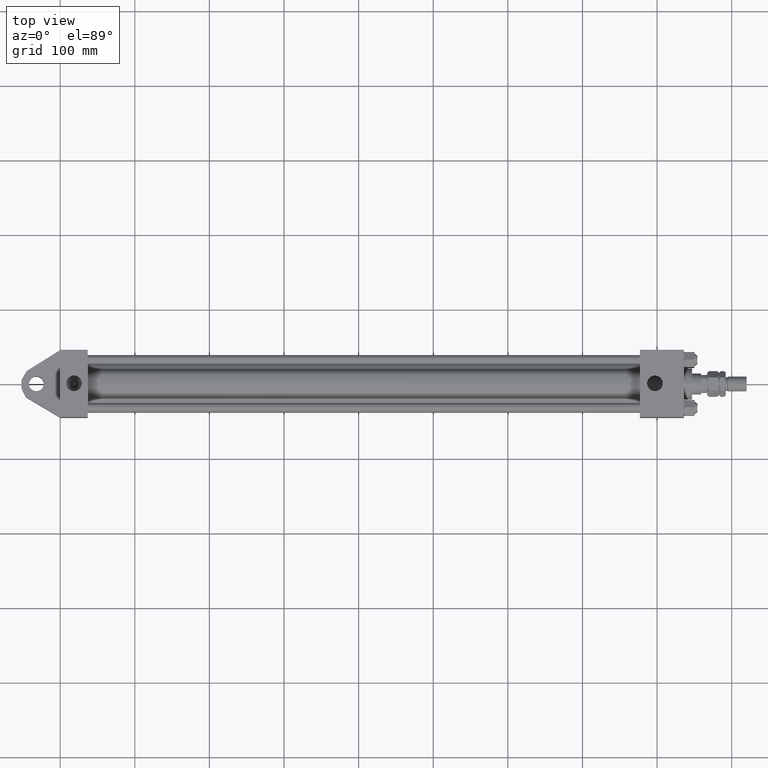
[diagram: clean part render]
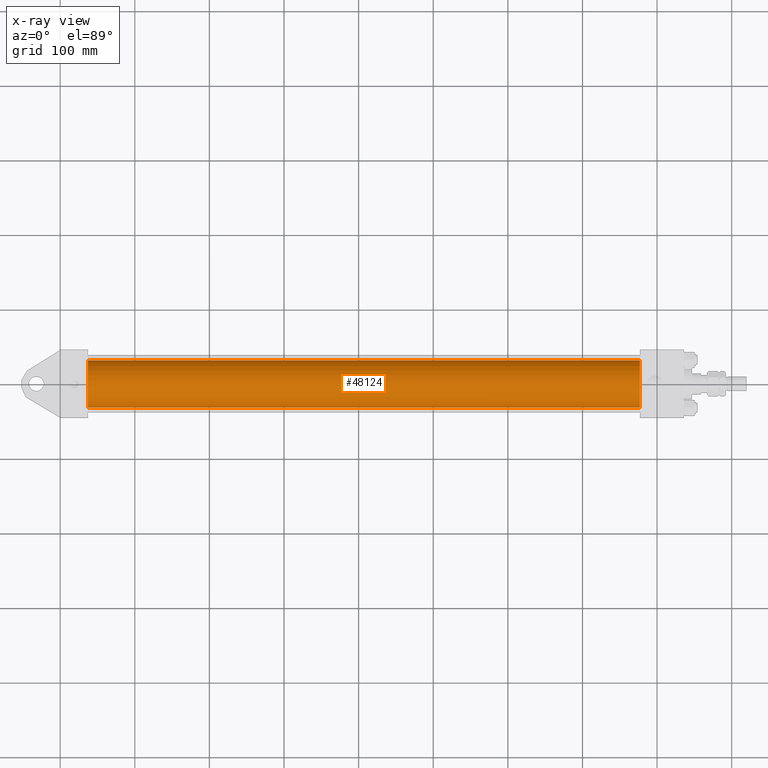
[diagram: x-ray — body ghosted, one internal face saturated and labeled with its STEP entity id]
A machine part, top view, then the same camera in x-ray: the body is ghosted and one INTERNAL B-rep face — a face not visible from any outside direction — is saturated and labeled: STEP entity #48124.
In plain terms, the highlighted cylindrical surface (edge-blend (fillet) strip) has radius 31.5 mm, axis along (-1, -0, 0).
Its self-contained STEP definition (entity closure, byte-faithful):
#432 = ORIENTED_EDGE ( 'NONE', *, *, #50229, .T. ) ;
#1078 = CARTESIAN_POINT ( 'NONE',  ( 777.0000000000000000, 3.881904653605483521E-16, -31.50000000000000000 ) ) ;
#1597 = DIRECTION ( 'NONE',  ( 1.000000000000000000, 0.000000000000000000, 0.000000000000000000 ) ) ;
#2265 = AXIS2_PLACEMENT_3D ( 'NONE', #48983, #49242, #8485 ) ;
#2679 = CIRCLE ( 'NONE', #23370, 31.50000000000000000 ) ;
#2707 = LINE ( 'NONE', #11004, #4800 ) ;
#2845 = CARTESIAN_POINT ( 'NONE',  ( 777.0000000000000000, -3.469446951953614189E-15, 31.50000000000000000 ) ) ;
#3179 = CARTESIAN_POINT ( 'NONE',  ( 37.00000000000000000, -3.469446951953614189E-15, 0.000000000000000000 ) ) ;
#3675 = DIRECTION ( 'NONE',  ( 0.000000000000000000, 0.000000000000000000, -1.000000000000000000 ) ) ;
#4800 = VECTOR ( 'NONE', #34127, 1000.000000000000000 ) ;
#5469 = EDGE_CURVE ( 'NONE', #7757, #20794, #20469, .T. ) ;
#7309 = EDGE_CURVE ( 'NONE', #7757, #17833, #2707, .T. ) ;
#7324 = DIRECTION ( 'NONE',  ( 1.000000000000000000, 0.000000000000000000, 0.000000000000000000 ) ) ;
#7757 = VERTEX_POINT ( 'NONE', #2845 ) ;
#8485 = DIRECTION ( 'NONE',  ( 0.000000000000000000, 0.000000000000000000, 1.000000000000000000 ) ) ;
#11004 = CARTESIAN_POINT ( 'NONE',  ( 777.0000000000000000, -3.469446951953614189E-15, 31.50000000000000000 ) ) ;
#12994 = CARTESIAN_POINT ( 'NONE',  ( 37.00000000000000000, -3.469446951953614189E-15, 31.50000000000000000 ) ) ;
#15235 = EDGE_LOOP ( 'NONE', ( #27426, #432, #43921, #50305 ) ) ;
#17833 = VERTEX_POINT ( 'NONE', #12994 ) ;
#20469 = CIRCLE ( 'NONE', #49510, 31.50000000000000000 ) ;
#20676 = CYLINDRICAL_SURFACE ( 'NONE', #2265, 31.50000000000000000 ) ;
#20794 = VERTEX_POINT ( 'NONE', #1078 ) ;
#21334 = CARTESIAN_POINT ( 'NONE',  ( 777.0000000000000000, -3.469446951953614189E-15, 0.000000000000000000 ) ) ;
#23370 = AXIS2_PLACEMENT_3D ( 'NONE', #3179, #7324, #3675 ) ;
#23502 = LINE ( 'NONE', #39614, #27993 ) ;
#27426 = ORIENTED_EDGE ( 'NONE', *, *, #5469, .T. ) ;
#27993 = VECTOR ( 'NONE', #39351, 1000.000000000000000 ) ;
#32433 = EDGE_CURVE ( 'NONE', #17833, #46940, #2679, .T. ) ;
#33145 = FACE_OUTER_BOUND ( 'NONE', #15235, .T. ) ;
#34127 = DIRECTION ( 'NONE',  ( -1.000000000000000000, -0.000000000000000000, -0.000000000000000000 ) ) ;
#39351 = DIRECTION ( 'NONE',  ( -1.000000000000000000, -0.000000000000000000, -0.000000000000000000 ) ) ;
#39614 = CARTESIAN_POINT ( 'NONE',  ( 777.0000000000000000, 3.881904653605483521E-16, -31.50000000000000000 ) ) ;
#43921 = ORIENTED_EDGE ( 'NONE', *, *, #32433, .F. ) ;
#45218 = DIRECTION ( 'NONE',  ( 0.000000000000000000, 0.000000000000000000, -1.000000000000000000 ) ) ;
#46940 = VERTEX_POINT ( 'NONE', #49982 ) ;
#48124 = ADVANCED_FACE ( 'NONE', ( #33145 ), #20676, .F. ) ;
#48983 = CARTESIAN_POINT ( 'NONE',  ( 777.0000000000000000, -3.469446951953614189E-15, 0.000000000000000000 ) ) ;
#49242 = DIRECTION ( 'NONE',  ( -1.000000000000000000, -0.000000000000000000, -0.000000000000000000 ) ) ;
#49510 = AXIS2_PLACEMENT_3D ( 'NONE', #21334, #1597, #45218 ) ;
#49982 = CARTESIAN_POINT ( 'NONE',  ( 37.00000000000000000, 3.881904653605483521E-16, -31.50000000000000000 ) ) ;
#50229 = EDGE_CURVE ( 'NONE', #20794, #46940, #23502, .T. ) ;
#50305 = ORIENTED_EDGE ( 'NONE', *, *, #7309, .F. ) ;